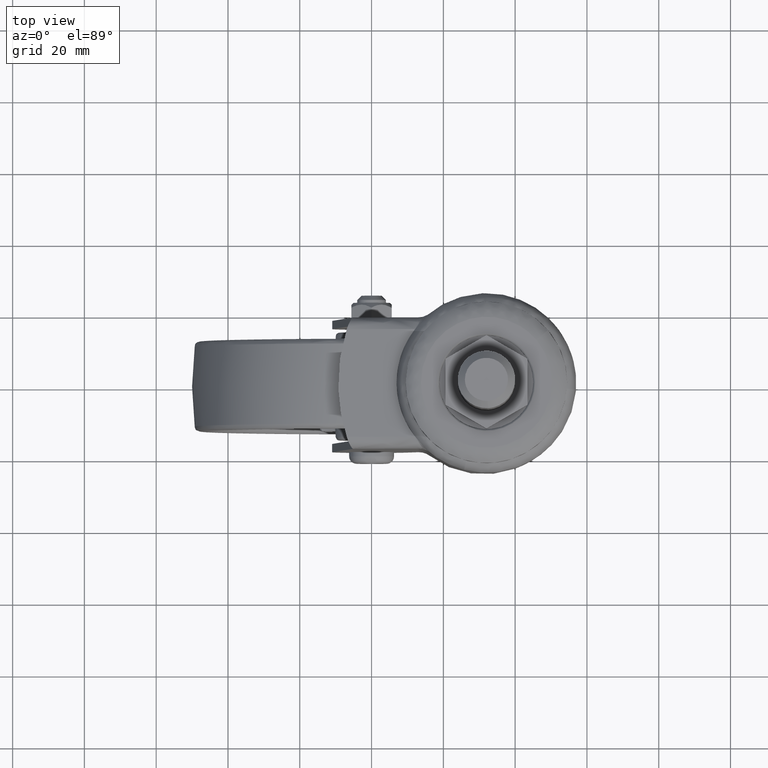
[diagram: clean part render]
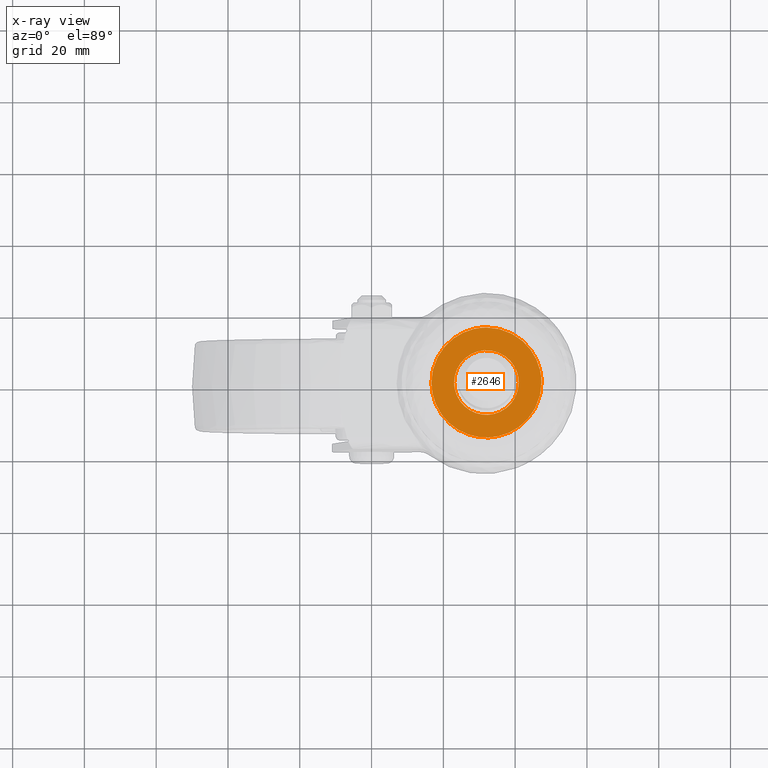
[diagram: x-ray — body ghosted, one internal face saturated and labeled with its STEP entity id]
A machine part, top view, then the same camera in x-ray: the body is ghosted and one INTERNAL B-rep face — a face not visible from any outside direction — is saturated and labeled: STEP entity #2646.
In plain terms, the highlighted face is a freeform B-spline surface patch.
Its self-contained STEP definition (entity closure, byte-faithful):
#79=CARTESIAN_POINT('',(31.293883787124511,8.972257235148014,64.099995999999791));
#80=VERTEX_POINT('',#79);
#86=CARTESIAN_POINT('',(23.216280281022350,1.961190428908601,64.099995999999805));
#87=VERTEX_POINT('',#86);
#88=CARTESIAN_POINT('',(23.216280281022346,1.961190428908601,64.099995999999805));
#89=CARTESIAN_POINT('',(24.665202814263470,8.450580361411349,64.099995999999791));
#90=CARTESIAN_POINT('',(31.293883787124514,8.972257235148014,64.099995999999791));
#98=(BOUNDED_CURVE()B_SPLINE_CURVE(2,(#88,#89,#90),.UNSPECIFIED.,.F.,.U.)B_SPLINE_CURVE_WITH_KNOTS((3,3),(0.537286667229721,0.736331599617398),.UNSPECIFIED.)CURVE()GEOMETRIC_REPRESENTATION_ITEM()RATIONAL_B_SPLINE_CURVE((0.925662564598871,0.762027627797807,0.969723980130769))REPRESENTATION_ITEM(''));
#99=EDGE_CURVE('',#87,#80,#98,.T.);
#151=CARTESIAN_POINT('',(23.0,-1.136868E-013,64.099995999999791));
#152=VERTEX_POINT('',#151);
#153=CARTESIAN_POINT('',(23.0,-1.136868E-013,64.099995999999791));
#154=CARTESIAN_POINT('',(22.999999999999996,0.992520920314721,64.099995999999791));
#155=CARTESIAN_POINT('',(23.216280281022350,1.961190428908601,64.099995999999805));
#163=(BOUNDED_CURVE()B_SPLINE_CURVE(2,(#153,#154,#155),.UNSPECIFIED.,.F.,.U.)B_SPLINE_CURVE_WITH_KNOTS((3,3),(0.500000000000000,0.537286667229721),.UNSPECIFIED.)CURVE()GEOMETRIC_REPRESENTATION_ITEM()RATIONAL_B_SPLINE_CURVE((1.0,0.956315952065044,0.925662564598870))REPRESENTATION_ITEM(''));
#164=EDGE_CURVE('',#152,#87,#163,.T.);
#166=CARTESIAN_POINT('',(41.0,-1.136868E-013,64.099995999999791));
#167=VERTEX_POINT('',#166);
#168=CARTESIAN_POINT('',(41.0,-1.136868E-013,64.099995999999791));
#169=CARTESIAN_POINT('',(41.000000000000007,-9.000000000000116,64.099995999999791));
#170=CARTESIAN_POINT('',(32.0,-9.000000000000114,64.099995999999791));
#171=CARTESIAN_POINT('',(22.999999999999996,-9.000000000000116,64.099995999999791));
#172=CARTESIAN_POINT('',(23.0,-1.136868E-013,64.099995999999791));
#180=(BOUNDED_CURVE()B_SPLINE_CURVE(2,(#168,#169,#170,#171,#172),.UNSPECIFIED.,.F.,.U.)B_SPLINE_CURVE_WITH_KNOTS((3,2,3),(0.0,0.250000000000000,0.500000000000000),.UNSPECIFIED.)CURVE()GEOMETRIC_REPRESENTATION_ITEM()RATIONAL_B_SPLINE_CURVE((1.0,0.707106781186547,1.0,0.707106781186547,1.0))REPRESENTATION_ITEM(''));
#181=EDGE_CURVE('',#167,#152,#180,.T.);
#183=CARTESIAN_POINT('',(31.293883787124514,8.972257235148014,64.099995999999791));
#184=CARTESIAN_POINT('',(31.646396897577471,8.999999999999885,64.099995999999791));
#185=CARTESIAN_POINT('',(32.0,8.999999999999885,64.099995999999791));
#186=CARTESIAN_POINT('',(41.000000000000007,8.999999999999885,64.099995999999791));
#187=CARTESIAN_POINT('',(41.0,-1.136868E-013,64.099995999999791));
#195=(BOUNDED_CURVE()B_SPLINE_CURVE(2,(#183,#184,#185,#186,#187),.UNSPECIFIED.,.F.,.U.)B_SPLINE_CURVE_WITH_KNOTS((3,2,3),(0.736331599617398,0.750000000000000,1.0),.UNSPECIFIED.)CURVE()GEOMETRIC_REPRESENTATION_ITEM()RATIONAL_B_SPLINE_CURVE((0.969723980130769,0.983986472863635,1.0,0.707106781186547,1.0))REPRESENTATION_ITEM(''));
#196=EDGE_CURVE('',#80,#167,#195,.T.);
#1824=CARTESIAN_POINT('',(19.523635629220340,-8.908688191110702,64.099995999553869));
#1825=VERTEX_POINT('',#1824);
#1841=CARTESIAN_POINT('',(16.669494685734900,-1.136868E-013,64.099995999999791));
#1842=VERTEX_POINT('',#1841);
#1843=CARTESIAN_POINT('',(19.523635629220340,-8.908688191110702,64.099995999553869));
#1844=CARTESIAN_POINT('',(16.669494685734893,-4.911544995992534,64.099995999999777));
#1845=CARTESIAN_POINT('',(16.669494685734900,-1.136868E-013,64.099995999999791));
#1853=(BOUNDED_CURVE()B_SPLINE_CURVE(2,(#1843,#1844,#1845),.UNSPECIFIED.,.F.,.U.)B_SPLINE_CURVE_WITH_KNOTS((3,3),(0.899999999999801,1.0),.UNSPECIFIED.)CURVE()GEOMETRIC_REPRESENTATION_ITEM()RATIONAL_B_SPLINE_CURVE((0.859411254969449,0.882842712474386,1.0))REPRESENTATION_ITEM(''));
#1854=EDGE_CURVE('',#1825,#1842,#1853,.T.);
#1856=CARTESIAN_POINT('',(32.0,15.330505314347230,64.099995999862372));
#1857=VERTEX_POINT('',#1856);
#1858=CARTESIAN_POINT('',(16.669494685734900,-1.136868E-013,64.099995999999791));
#1859=CARTESIAN_POINT('',(16.669494685734897,15.330505314264995,64.099995999999791));
#1860=CARTESIAN_POINT('',(32.0,15.330505314347230,64.099995999862372));
#1868=(BOUNDED_CURVE()B_SPLINE_CURVE(2,(#1858,#1859,#1860),.UNSPECIFIED.,.F.,.U.)B_SPLINE_CURVE_WITH_KNOTS((3,3),(0.0,0.250000000000000),.UNSPECIFIED.)CURVE()GEOMETRIC_REPRESENTATION_ITEM()RATIONAL_B_SPLINE_CURVE((1.0,0.707106781186547,1.0))REPRESENTATION_ITEM(''));
#1869=EDGE_CURVE('',#1842,#1857,#1868,.T.);
#1993=CARTESIAN_POINT('',(47.330505314265103,-1.136868E-013,64.099995999999791));
#1994=VERTEX_POINT('',#1993);
#1995=CARTESIAN_POINT('',(32.0,15.330505314347230,64.099995999862372));
#1996=CARTESIAN_POINT('',(47.330505314265089,15.330505314264993,64.099995999999791));
#1997=CARTESIAN_POINT('',(47.330505314265103,-1.136868E-013,64.099995999999791));
#2005=(BOUNDED_CURVE()B_SPLINE_CURVE(2,(#1995,#1996,#1997),.UNSPECIFIED.,.F.,.U.)B_SPLINE_CURVE_WITH_KNOTS((3,3),(0.250000000000000,0.500000000000000),.UNSPECIFIED.)CURVE()GEOMETRIC_REPRESENTATION_ITEM()RATIONAL_B_SPLINE_CURVE((1.0,0.707106781186547,1.0))REPRESENTATION_ITEM(''));
#2006=EDGE_CURVE('',#1857,#1994,#2005,.T.);
#2008=CARTESIAN_POINT('',(47.330505314265103,-1.136868E-013,64.099995999999791));
#2009=CARTESIAN_POINT('',(47.330505314265089,-15.330505314265219,64.099995999999791));
#2010=CARTESIAN_POINT('',(32.0,-15.330505314265221,64.099995999999791));
#2011=CARTESIAN_POINT('',(24.109103372425910,-15.330505314265213,64.099995999999763));
#2012=CARTESIAN_POINT('',(19.523635629220333,-8.908688191110702,64.099995999553869));
#2020=(BOUNDED_CURVE()B_SPLINE_CURVE(2,(#2008,#2009,#2010,#2011,#2012),.UNSPECIFIED.,.F.,.U.)B_SPLINE_CURVE_WITH_KNOTS((3,2,3),(0.500000000000000,0.750000000000000,0.899999999999801),.UNSPECIFIED.)CURVE()GEOMETRIC_REPRESENTATION_ITEM()RATIONAL_B_SPLINE_CURVE((1.0,0.707106781186547,1.0,0.824264068712162,0.859411254969449))REPRESENTATION_ITEM(''));
#2021=EDGE_CURVE('',#1994,#1825,#2020,.T.);
#2629=CARTESIAN_POINT('',(15.137976976443170,-16.856517598191001,64.099995999999791));
#2630=CARTESIAN_POINT('',(48.862023571818433,-16.856517598191001,64.099995999999791));
#2631=CARTESIAN_POINT('',(15.137976976443170,16.861761657841431,64.099995999999791));
#2632=CARTESIAN_POINT('',(48.862023571818433,16.861761657841431,64.099995999999791));
#2633=B_SPLINE_SURFACE_WITH_KNOTS('',1,1,((#2629,#2631),(#2630,#2632)),.UNSPECIFIED.,.F.,.F.,.U.,(2,2),(2,2),(0.0,33.724046595375263),(0.0,33.718279256032432),.UNSPECIFIED.);
#2634=ORIENTED_EDGE('',*,*,#1854,.F.);
#2635=ORIENTED_EDGE('',*,*,#2021,.F.);
#2636=ORIENTED_EDGE('',*,*,#2006,.F.);
#2637=ORIENTED_EDGE('',*,*,#1869,.F.);
#2638=EDGE_LOOP('',(#2634,#2635,#2636,#2637));
#2639=FACE_OUTER_BOUND('',#2638,.T.);
#2640=ORIENTED_EDGE('',*,*,#181,.T.);
#2641=ORIENTED_EDGE('',*,*,#164,.T.);
#2642=ORIENTED_EDGE('',*,*,#99,.T.);
#2643=ORIENTED_EDGE('',*,*,#196,.T.);
#2644=EDGE_LOOP('',(#2640,#2641,#2642,#2643));
#2645=FACE_BOUND('',#2644,.T.);
#2646=ADVANCED_FACE('',(#2639,#2645),#2633,.T.);